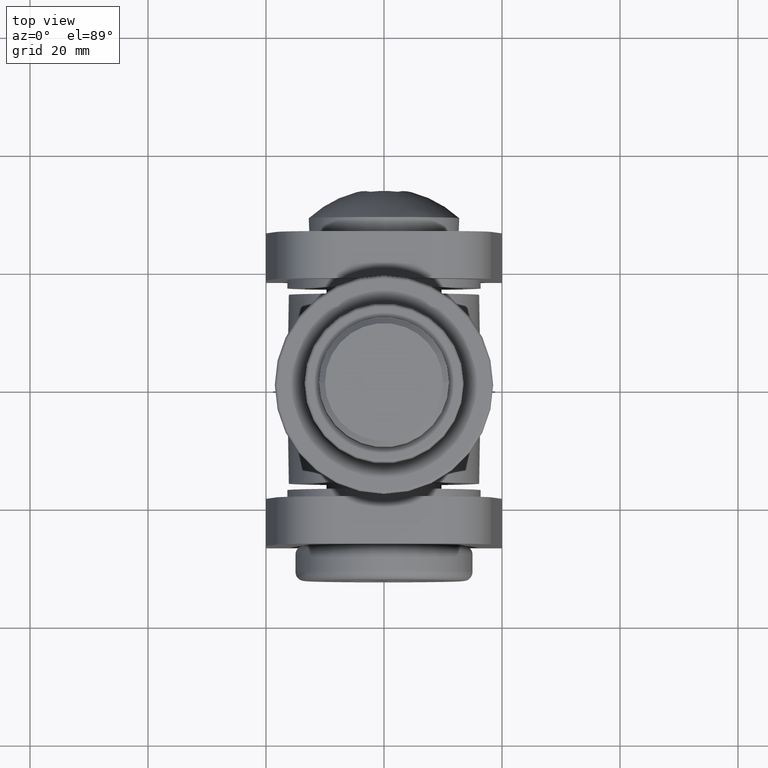
[diagram: clean part render]
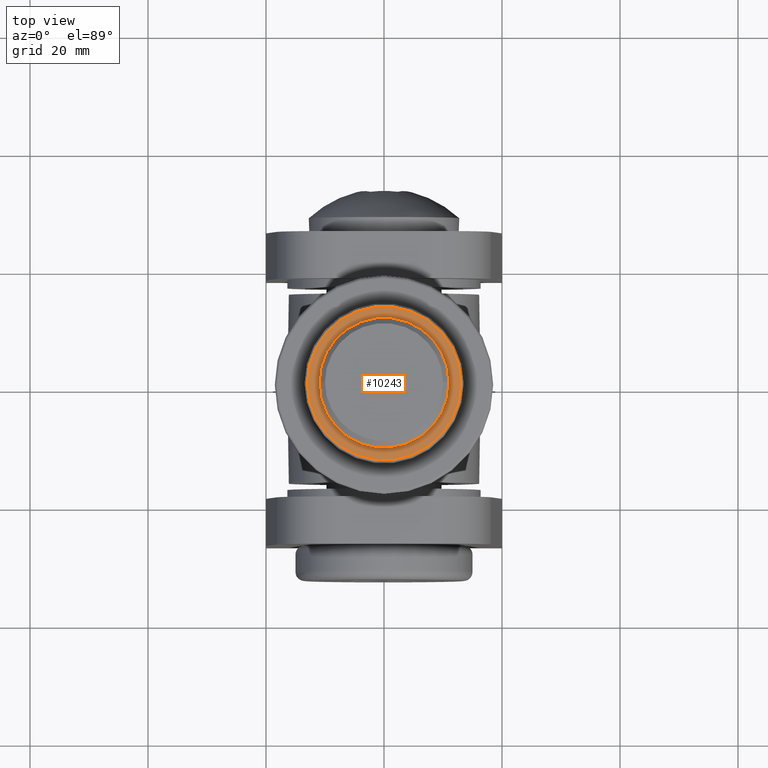
[diagram: same view with one face highlighted and labeled with its STEP entity id]
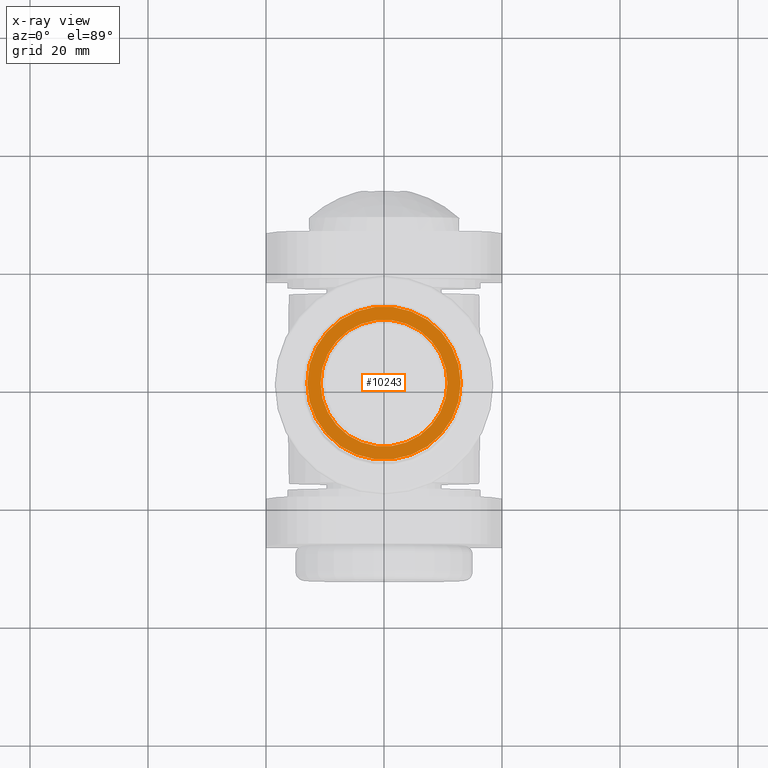
[diagram: x-ray of the same camera — body ghosted, the highlighted face saturated]
A machine part, top view. The second image highlights one B-rep face of the part: STEP entity #10243.
The next image is the same camera in x-ray: the body ghosted, the highlighted face saturated — about 0% of this face is hidden behind the body in this view.
In plain terms, the highlighted planar face has unit normal (0, 0, 1).
Its self-contained STEP definition (entity closure, byte-faithful):
#85 = FACE_BOUND ( 'NONE', #13083, .T. ) ;
#298 = CARTESIAN_POINT ( 'NONE',  ( 0.0000000000000000000, 0.0000000000000000000, 20.00000000000000400 ) ) ;
#690 = CIRCLE ( 'NONE', #6840, 13.00000000000000000 ) ;
#751 = CIRCLE ( 'NONE', #8368, 13.00000000000000000 ) ;
#953 = DIRECTION ( 'NONE',  ( 0.0000000000000000000, 0.0000000000000000000, 1.000000000000000000 ) ) ;
#1049 = AXIS2_PLACEMENT_3D ( 'NONE', #11919, #953, #6048 ) ;
#1757 = DIRECTION ( 'NONE',  ( 1.000000000000000000, 0.0000000000000000000, 0.0000000000000000000 ) ) ;
#3213 = CARTESIAN_POINT ( 'NONE',  ( 0.0000000000000000000, 0.0000000000000000000, 20.00000000000000400 ) ) ;
#4182 = DIRECTION ( 'NONE',  ( -0.0000000000000000000, -0.0000000000000000000, -1.000000000000000000 ) ) ;
#4333 = EDGE_CURVE ( 'NONE', #15605, #15131, #13852, .T. ) ;
#4669 = DIRECTION ( 'NONE',  ( 0.0000000000000000000, 0.0000000000000000000, 1.000000000000000000 ) ) ;
#4834 = EDGE_CURVE ( 'NONE', #15131, #15605, #5915, .T. ) ;
#5353 = DIRECTION ( 'NONE',  ( 0.0000000000000000000, 0.0000000000000000000, 1.000000000000000000 ) ) ;
#5772 = CARTESIAN_POINT ( 'NONE',  ( -13.00000000000000000, 1.622657008870242900E-015, 20.00000000000000400 ) ) ;
#5891 = AXIS2_PLACEMENT_3D ( 'NONE', #298, #11247, #14823 ) ;
#5915 = CIRCLE ( 'NONE', #13378, 10.75000000000000900 ) ;
#5930 = DIRECTION ( 'NONE',  ( 1.000000000000000000, 0.0000000000000000000, 0.0000000000000000000 ) ) ;
#6048 = DIRECTION ( 'NONE',  ( 1.000000000000000000, 0.0000000000000000000, -0.0000000000000000000 ) ) ;
#6271 = ORIENTED_EDGE ( 'NONE', *, *, #4333, .T. ) ;
#6330 = VERTEX_POINT ( 'NONE', #12960 ) ;
#6840 = AXIS2_PLACEMENT_3D ( 'NONE', #7792, #5353, #1757 ) ;
#6925 = ORIENTED_EDGE ( 'NONE', *, *, #10003, .T. ) ;
#7792 = CARTESIAN_POINT ( 'NONE',  ( 0.0000000000000000000, 0.0000000000000000000, 20.00000000000000400 ) ) ;
#7954 = ORIENTED_EDGE ( 'NONE', *, *, #4834, .T. ) ;
#8368 = AXIS2_PLACEMENT_3D ( 'NONE', #15776, #4669, #5930 ) ;
#8423 = EDGE_LOOP ( 'NONE', ( #6925, #8924 ) ) ;
#8924 = ORIENTED_EDGE ( 'NONE', *, *, #12027, .T. ) ;
#10003 = EDGE_CURVE ( 'NONE', #6330, #11097, #690, .T. ) ;
#10243 = ADVANCED_FACE ( 'NONE', ( #85, #12313 ), #12866, .T. ) ;
#10609 = CARTESIAN_POINT ( 'NONE',  ( -10.75000000000000900, 1.316495309083405800E-015, 20.00000000000000400 ) ) ;
#11097 = VERTEX_POINT ( 'NONE', #5772 ) ;
#11247 = DIRECTION ( 'NONE',  ( -0.0000000000000000000, -0.0000000000000000000, -1.000000000000000000 ) ) ;
#11919 = CARTESIAN_POINT ( 'NONE',  ( 0.0000000000000000000, 0.0000000000000000000, 20.00000000000000400 ) ) ;
#12027 = EDGE_CURVE ( 'NONE', #11097, #6330, #751, .T. ) ;
#12313 = FACE_OUTER_BOUND ( 'NONE', #8423, .T. ) ;
#12866 = PLANE ( 'NONE',  #1049 ) ;
#12960 = CARTESIAN_POINT ( 'NONE',  ( 13.00000000000000000, 0.0000000000000000000, 20.00000000000000400 ) ) ;
#13083 = EDGE_LOOP ( 'NONE', ( #7954, #6271 ) ) ;
#13139 = CARTESIAN_POINT ( 'NONE',  ( 10.75000000000000900, 0.0000000000000000000, 20.00000000000000400 ) ) ;
#13378 = AXIS2_PLACEMENT_3D ( 'NONE', #3213, #4182, #15283 ) ;
#13852 = CIRCLE ( 'NONE', #5891, 10.75000000000000900 ) ;
#14823 = DIRECTION ( 'NONE',  ( 1.000000000000000000, 0.0000000000000000000, 0.0000000000000000000 ) ) ;
#15131 = VERTEX_POINT ( 'NONE', #13139 ) ;
#15283 = DIRECTION ( 'NONE',  ( 1.000000000000000000, 0.0000000000000000000, 0.0000000000000000000 ) ) ;
#15605 = VERTEX_POINT ( 'NONE', #10609 ) ;
#15776 = CARTESIAN_POINT ( 'NONE',  ( 0.0000000000000000000, 0.0000000000000000000, 20.00000000000000400 ) ) ;